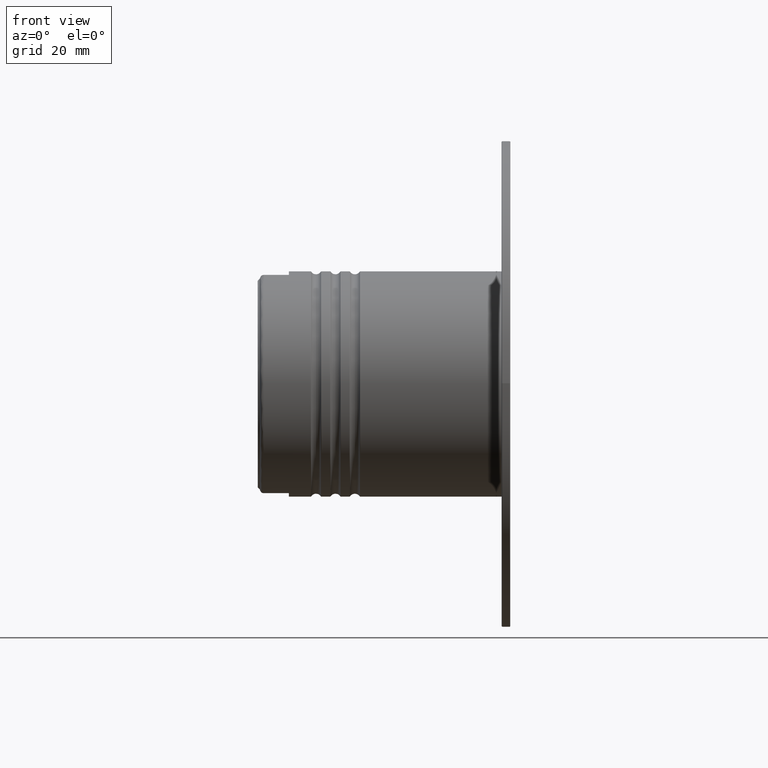
[diagram: clean part render]
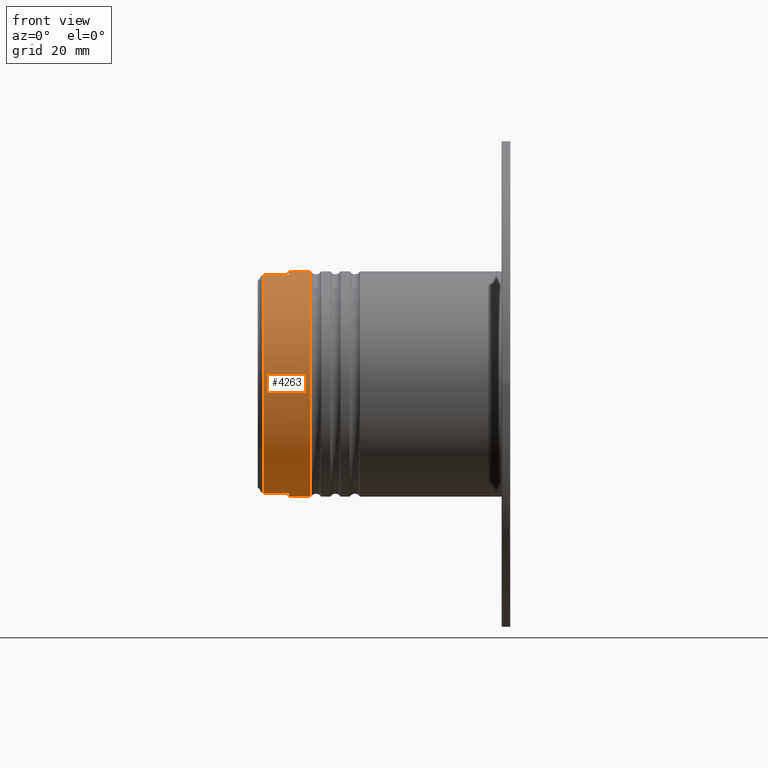
[diagram: same view with one face highlighted and labeled with its STEP entity id]
A machine part, front view. The second image highlights one B-rep face of the part: STEP entity #4263.
In plain terms, the highlighted cylindrical surface (partial cylindrical patch) has radius 29 mm, axis along (1, 0, 0).
Its self-contained STEP definition (entity closure, byte-faithful):
#22 = CIRCLE ( 'NONE', #330, 28.99999999999999645 ) ;
#234 = EDGE_CURVE ( 'NONE', #2672, #417, #22, .T. ) ;
#245 = EDGE_CURVE ( 'NONE', #417, #6109, #4329, .T. ) ;
#330 = AXIS2_PLACEMENT_3D ( 'NONE', #1095, #2669, #1599 ) ;
#336 = VERTEX_POINT ( 'NONE', #2093 ) ;
#351 = ORIENTED_EDGE ( 'NONE', *, *, #6648, .F. ) ;
#417 = VERTEX_POINT ( 'NONE', #5816 ) ;
#532 = CARTESIAN_POINT ( 'NONE',  ( 0.0000000000000000000, 3.551475717527324030E-15, 28.99999999999999645 ) ) ;
#675 = DIRECTION ( 'NONE',  ( -1.000000000000000000, -0.0000000000000000000, -0.0000000000000000000 ) ) ;
#810 = CARTESIAN_POINT ( 'NONE',  ( 8.921435019309286585E-16, -7.200000000000001066, 28.09199174141982880 ) ) ;
#975 = DIRECTION ( 'NONE',  ( 1.000000000000000000, -0.0000000000000000000, -0.0000000000000000000 ) ) ;
#1000 = CARTESIAN_POINT ( 'NONE',  ( -63.24972663000000495, -7.200000000000001066, 28.09199174141982880 ) ) ;
#1075 = CARTESIAN_POINT ( 'NONE',  ( 8.921435019309286585E-16, -7.200000000000001066, -28.09199174141982880 ) ) ;
#1095 = CARTESIAN_POINT ( 'NONE',  ( -56.74972663000001205, 0.0000000000000000000, 0.0000000000000000000 ) ) ;
#1258 = ORIENTED_EDGE ( 'NONE', *, *, #3794, .T. ) ;
#1309 = DIRECTION ( 'NONE',  ( 0.0000000000000000000, 0.0000000000000000000, -1.000000000000000000 ) ) ;
#1405 = DIRECTION ( 'NONE',  ( 0.0000000000000000000, 5.329070518200751394E-15, -1.000000000000000000 ) ) ;
#1409 = CARTESIAN_POINT ( 'NONE',  ( -56.74972663000001205, -7.200000000000007283, 28.09199174141981459 ) ) ;
#1554 = CARTESIAN_POINT ( 'NONE',  ( -56.74972663000001205, 0.0000000000000000000, -28.99999999999999645 ) ) ;
#1598 = VERTEX_POINT ( 'NONE', #1409 ) ;
#1599 = DIRECTION ( 'NONE',  ( 0.0000000000000000000, 0.0000000000000000000, -1.000000000000000000 ) ) ;
#1673 = ORIENTED_EDGE ( 'NONE', *, *, #3726, .F. ) ;
#1684 = VERTEX_POINT ( 'NONE', #5706 ) ;
#1719 = LINE ( 'NONE', #3450, #4342 ) ;
#2025 = VERTEX_POINT ( 'NONE', #1000 ) ;
#2067 = ORIENTED_EDGE ( 'NONE', *, *, #6111, .T. ) ;
#2093 = CARTESIAN_POINT ( 'NONE',  ( -51.15951384798718493, 0.0000000000000000000, -28.99999999999999645 ) ) ;
#2184 = VECTOR ( 'NONE', #975, 1000.000000000000000 ) ;
#2193 = VECTOR ( 'NONE', #5526, 1000.000000000000000 ) ;
#2233 = DIRECTION ( 'NONE',  ( 0.0000000000000000000, 0.0000000000000000000, 1.000000000000000000 ) ) ;
#2251 = CARTESIAN_POINT ( 'NONE',  ( -56.74972663000001205, 3.551475717527324030E-15, 28.99999999999999645 ) ) ;
#2304 = DIRECTION ( 'NONE',  ( 1.000000000000000000, -0.0000000000000000000, -0.0000000000000000000 ) ) ;
#2354 = LINE ( 'NONE', #532, #2184 ) ;
#2625 = DIRECTION ( 'NONE',  ( -1.000000000000000000, 0.0000000000000000000, 0.0000000000000000000 ) ) ;
#2669 = DIRECTION ( 'NONE',  ( -1.000000000000000000, 0.0000000000000000000, -0.0000000000000000000 ) ) ;
#2672 = VERTEX_POINT ( 'NONE', #1554 ) ;
#2918 = ORIENTED_EDGE ( 'NONE', *, *, #6438, .F. ) ;
#3221 = CARTESIAN_POINT ( 'NONE',  ( -51.15951384798718493, 0.0000000000000000000, 0.0000000000000000000 ) ) ;
#3450 = CARTESIAN_POINT ( 'NONE',  ( 0.0000000000000000000, 0.0000000000000000000, -28.99999999999999645 ) ) ;
#3584 = AXIS2_PLACEMENT_3D ( 'NONE', #6399, #2304, #1309 ) ;
#3726 = EDGE_CURVE ( 'NONE', #1598, #3959, #5151, .T. ) ;
#3778 = CYLINDRICAL_SURFACE ( 'NONE', #6442, 28.99999999999999645 ) ;
#3794 = EDGE_CURVE ( 'NONE', #2672, #336, #1719, .T. ) ;
#3823 = CARTESIAN_POINT ( 'NONE',  ( -63.24972663000000495, -7.200000000000001066, -28.09199174141982880 ) ) ;
#3928 = CIRCLE ( 'NONE', #3584, 28.99999999999998934 ) ;
#3959 = VERTEX_POINT ( 'NONE', #2251 ) ;
#3973 = CARTESIAN_POINT ( 'NONE',  ( -56.74972663000001205, 0.0000000000000000000, 0.0000000000000000000 ) ) ;
#4193 = EDGE_CURVE ( 'NONE', #2025, #6109, #3928, .T. ) ;
#4260 = FACE_OUTER_BOUND ( 'NONE', #5348, .T. ) ;
#4263 = ADVANCED_FACE ( 'NONE', ( #4260 ), #3778, .T. ) ;
#4329 = LINE ( 'NONE', #1075, #4977 ) ;
#4342 = VECTOR ( 'NONE', #6444, 1000.000000000000000 ) ;
#4553 = ORIENTED_EDGE ( 'NONE', *, *, #4193, .T. ) ;
#4901 = ORIENTED_EDGE ( 'NONE', *, *, #234, .F. ) ;
#4977 = VECTOR ( 'NONE', #2625, 1000.000000000000000 ) ;
#5151 = CIRCLE ( 'NONE', #5548, 28.99999999999999645 ) ;
#5316 = ORIENTED_EDGE ( 'NONE', *, *, #245, .F. ) ;
#5348 = EDGE_LOOP ( 'NONE', ( #351, #1673, #2918, #4553, #5316, #4901, #1258, #2067 ) ) ;
#5420 = CARTESIAN_POINT ( 'NONE',  ( 0.0000000000000000000, 0.0000000000000000000, 0.0000000000000000000 ) ) ;
#5444 = DIRECTION ( 'NONE',  ( 1.000000000000000000, -0.0000000000000000000, -0.0000000000000000000 ) ) ;
#5511 = DIRECTION ( 'NONE',  ( 0.0000000000000000000, 0.0000000000000000000, -1.000000000000000000 ) ) ;
#5526 = DIRECTION ( 'NONE',  ( 1.000000000000000000, -0.0000000000000000000, -0.0000000000000000000 ) ) ;
#5548 = AXIS2_PLACEMENT_3D ( 'NONE', #3973, #6547, #1405 ) ;
#5706 = CARTESIAN_POINT ( 'NONE',  ( -51.15951384798718493, 3.551475717527324030E-15, 28.99999999999999645 ) ) ;
#5816 = CARTESIAN_POINT ( 'NONE',  ( -56.74972663000001205, -7.200000000000007283, -28.09199174141982880 ) ) ;
#5989 = LINE ( 'NONE', #810, #2193 ) ;
#6109 = VERTEX_POINT ( 'NONE', #3823 ) ;
#6111 = EDGE_CURVE ( 'NONE', #336, #1684, #6283, .T. ) ;
#6279 = AXIS2_PLACEMENT_3D ( 'NONE', #3221, #675, #2233 ) ;
#6283 = CIRCLE ( 'NONE', #6279, 28.99999999999999645 ) ;
#6399 = CARTESIAN_POINT ( 'NONE',  ( -63.24972663000000495, 0.0000000000000000000, 0.0000000000000000000 ) ) ;
#6438 = EDGE_CURVE ( 'NONE', #2025, #1598, #5989, .T. ) ;
#6442 = AXIS2_PLACEMENT_3D ( 'NONE', #5420, #5444, #5511 ) ;
#6444 = DIRECTION ( 'NONE',  ( 1.000000000000000000, -0.0000000000000000000, -0.0000000000000000000 ) ) ;
#6547 = DIRECTION ( 'NONE',  ( -1.000000000000000000, 0.0000000000000000000, -0.0000000000000000000 ) ) ;
#6648 = EDGE_CURVE ( 'NONE', #3959, #1684, #2354, .T. ) ;